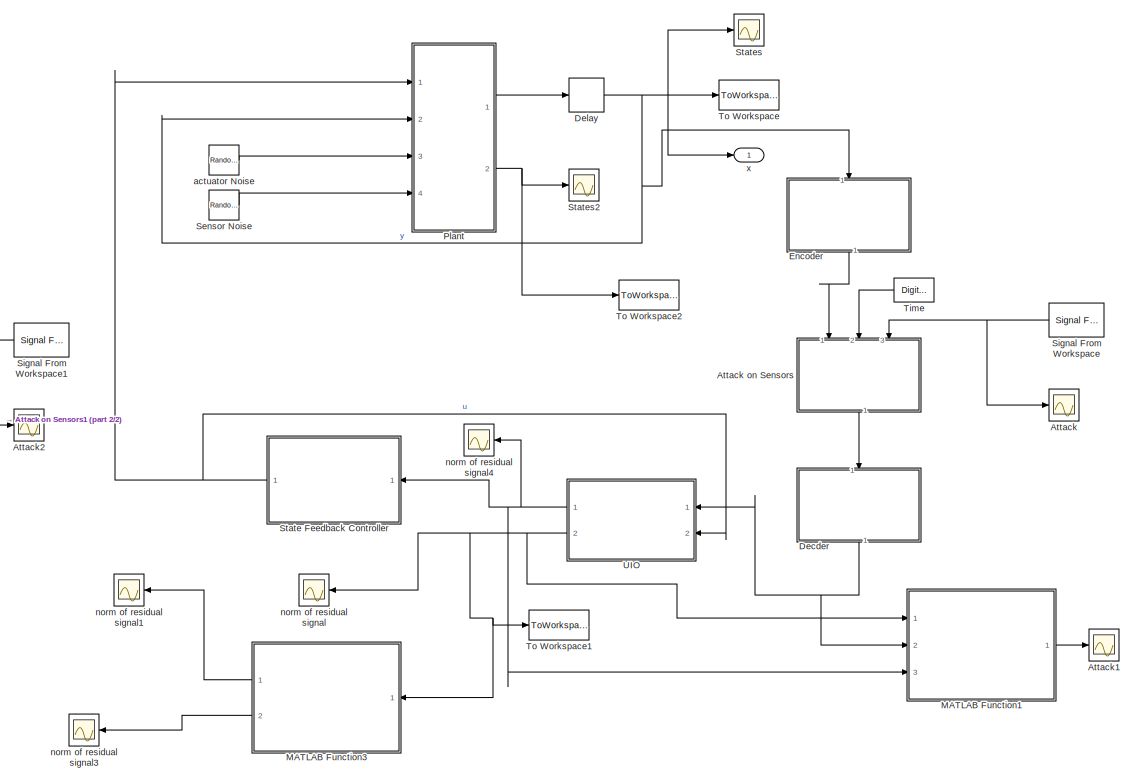
[diagram: root canvas - part 1/2, right side, full height]
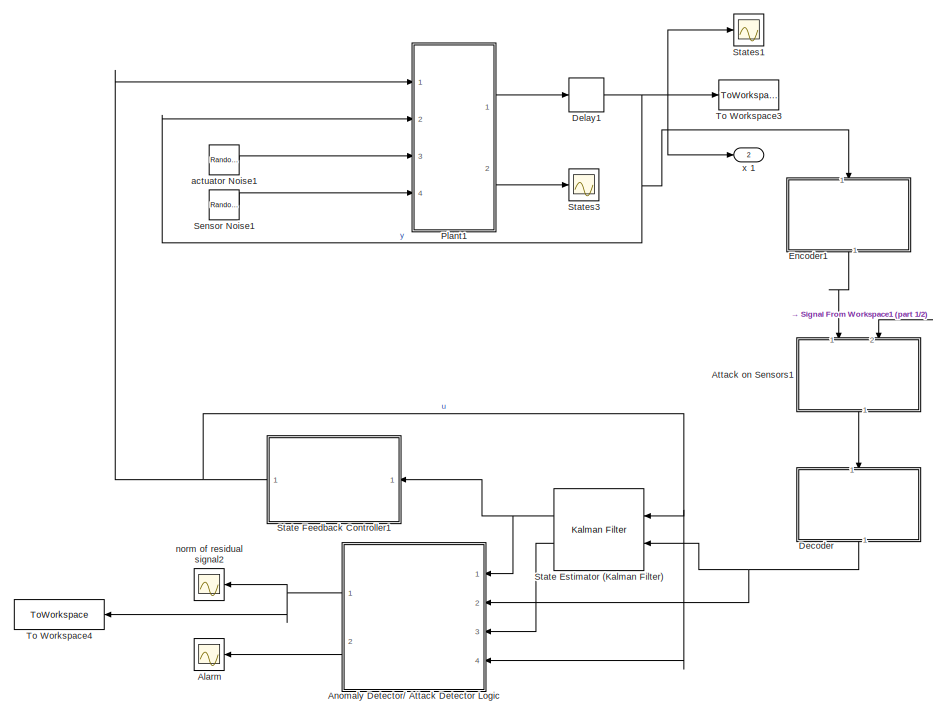
[diagram: root canvas - part 2/2, left side, full height]
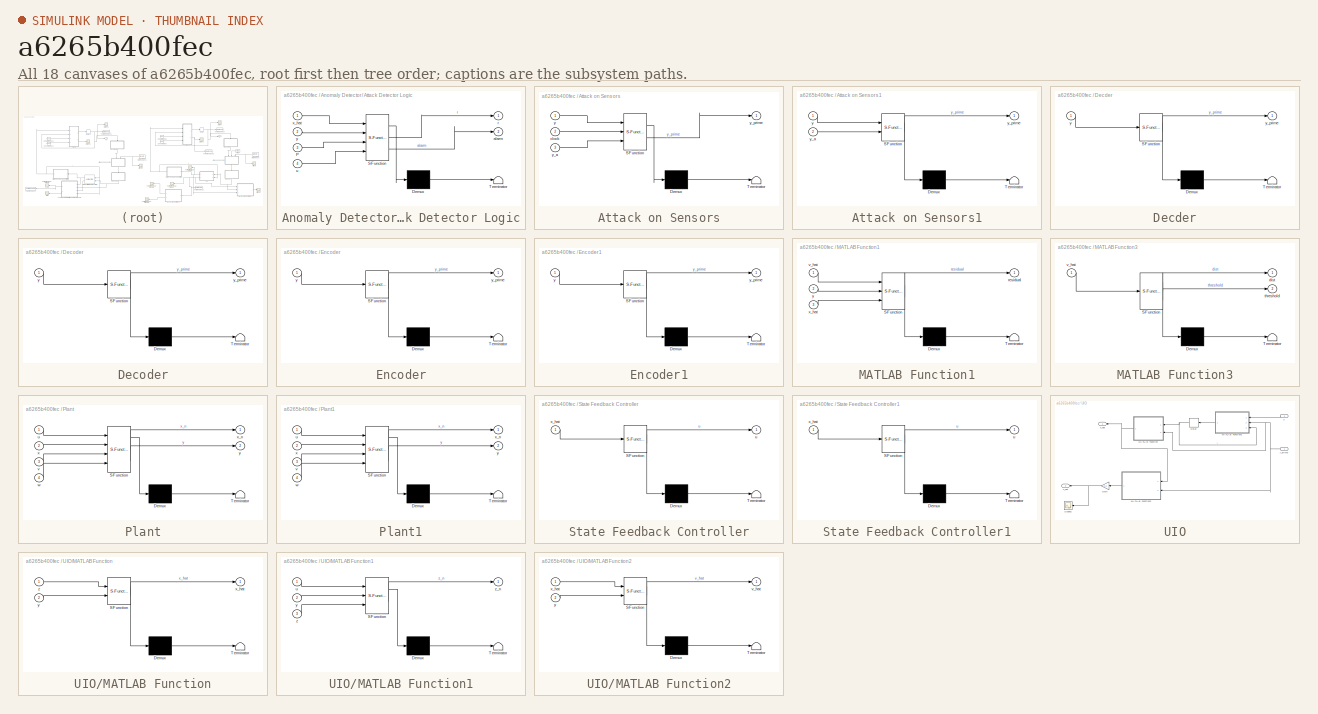
[diagram: thumbnail index - all 18 canvases of the model, root first then tree order]
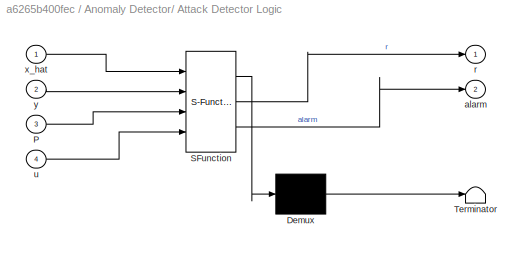
MODEL slx_a6265b400fec
KIND model
CONFIG AbsTol = auto
CONFIG EnableMultiTasking = off
CONFIG FixedStep = auto
CONFIG MaxStep = auto
CONFIG MinStep = auto
CONFIG RelTol = 1e-3
CONFIG SampleTimeConstraint = Unconstrained
CONFIG SolverName = VariableStepAuto
CONFIG StartTime = 0.0
CONFIG StopTime = 100
BLOCK [Scope] Alarm
  Floating = off
  NameLocation = top
  NumInputPorts = 1
  Ports = [1]
  ScopeSpecificationString = Simulink.scopes.TimeScopeBlockCfg('CurrentConfiguration', extmgr.ConfigurationSet(extmgr.Configuration('Core','General UI',true),extmgr.Configuration('Core','Source UI',true),extmgr.Configuration('Sources','WiredSimulink',true,'DataLoggingVariableName','ScopeData1'),extmgr.Configuration('Visuals','Time Domain',true,'SerializedDisplays',{struct('MinYLimReal','-0.125','MaxYLimReal','1.125','YLabelRe...<+1472ch>
BLOCK [SubSystem] Anomaly Detector// Attack Detector Logic
  ErrorFcn = Stateflow.Translate.translate
  NameLocation = top
  PermitHierarchicalResolution = ExplicitOnly
  Ports = [4, 2]
  RequestExecContextInheritance = off
  SFBlockType = MATLAB Function
  TreatAsAtomicUnit = on
BLOCK [Demux] Anomaly Detector// Attack Detector Logic/ Demux 
  Outputs = 1
  Ports = [1, 1]
BLOCK [S-Function] Anomaly Detector// Attack Detector Logic/ SFunction 
  EnableBusSupport = on
  FunctionName = sf_sfun
  PortCounts = [4 3]
  Ports = [4, 3]
  SFcnIsStateOwnerBlock = off
  SFunctionDeploymentMode = off
  Tag = Stateflow S-Function 11
BLOCK [Terminator] Anomaly Detector// Attack Detector Logic/ Terminator 
BLOCK [Inport] Anomaly Detector// Attack Detector Logic/P
  Port = 3
BLOCK [Outport] Anomaly Detector// Attack Detector Logic/alarm
  Port = 2
BLOCK [Outport] Anomaly Detector// Attack Detector Logic/r
BLOCK [Inport] Anomaly Detector// Attack Detector Logic/u
  Port = 4
BLOCK [Inport] Anomaly Detector// Attack Detector Logic/x_hat
BLOCK [Inport] Anomaly Detector// Attack Detector Logic/y
  Port = 2
BLOCK [Scope] Attack
  Floating = off
  NumInputPorts = 1
  Ports = [1]
  ScopeSpecificationString = Simulink.scopes.TimeScopeBlockCfg('CurrentConfiguration', extmgr.ConfigurationSet(extmgr.Configuration('Core','General UI',true),extmgr.Configuration('Core','Source UI',true),extmgr.Configuration('Sources','WiredSimulink',true,'DataLoggingVariableName','ScopeData2'),extmgr.Configuration('Visuals','Time Domain',true,'SerializedDisplays',{struct('MinYLimReal','-4.34935','MaxYLimReal','0.62615','YLab...<+1514ch>
BLOCK [SubSystem] Attack on Sensors
  ErrorFcn = Stateflow.Translate.translate
  NameLocation = left
  PermitHierarchicalResolution = ExplicitOnly
  Ports = [3, 1]
  RequestExecContextInheritance = off
  SFBlockType = MATLAB Function
  TreatAsAtomicUnit = on
BLOCK [Demux] Attack on Sensors/ Demux 
  Outputs = 1
  Ports = [1, 1]
BLOCK [S-Function] Attack on Sensors/ SFunction 
  EnableBusSupport = on
  FunctionName = sf_sfun
  PortCounts = [3 2]
  Ports = [3, 2]
  SFcnIsStateOwnerBlock = off
  SFunctionDeploymentMode = off
  Tag = Stateflow S-Function 2
BLOCK [Terminator] Attack on Sensors/ Terminator 
BLOCK [Inport] Attack on Sensors/clock
  Port = 2
BLOCK [Inport] Attack on Sensors/y
BLOCK [Inport] Attack on Sensors/y_a
  Port = 3
BLOCK [Outport] Attack on Sensors/y_prime
  VectorParamsAs1DForOutWhenUnconnected = off
BLOCK [SubSystem] Attack on Sensors1
  ErrorFcn = Stateflow.Translate.translate
  NameLocation = left
  PermitHierarchicalResolution = ExplicitOnly
  Ports = [2, 1]
  RequestExecContextInheritance = off
  SFBlockType = MATLAB Function
  TreatAsAtomicUnit = on
BLOCK [Demux] Attack on Sensors1/ Demux 
  Outputs = 1
  Ports = [1, 1]
BLOCK [S-Function] Attack on Sensors1/ SFunction 
  EnableBusSupport = on
  FunctionName = sf_sfun
  PortCounts = [2 2]
  Ports = [2, 2]
  SFcnIsStateOwnerBlock = off
  SFunctionDeploymentMode = off
  Tag = Stateflow S-Function 12
BLOCK [Terminator] Attack on Sensors1/ Terminator 
BLOCK [Inport] Attack on Sensors1/y
BLOCK [Inport] Attack on Sensors1/y_a
  Port = 2
BLOCK [Outport] Attack on Sensors1/y_prime
  VectorParamsAs1DForOutWhenUnconnected = off
BLOCK [Scope] Attack1
  Floating = off
  NumInputPorts = 1
  Ports = [1]
  ScopeSpecificationString = Simulink.scopes.TimeScopeBlockCfg('CurrentConfiguration', extmgr.ConfigurationSet(extmgr.Configuration('Core','General UI',true),extmgr.Configuration('Core','Source UI',true),extmgr.Configuration('Sources','WiredSimulink',true,'DataLoggingVariableName','ScopeData2'),extmgr.Configuration('Visuals','Time Domain',true,'SerializedDisplays',{struct('MinYLimReal','-0.02953','MaxYLimReal','0.03698','YLab...<+1504ch>
BLOCK [Scope] Attack2
  Floating = off
  NumInputPorts = 1
  Ports = [1]
  ScopeSpecificationString = Simulink.scopes.TimeScopeBlockCfg('CurrentConfiguration', extmgr.ConfigurationSet(extmgr.Configuration('Core','General UI',true),extmgr.Configuration('Core','Source UI',true),extmgr.Configuration('Sources','WiredSimulink',true,'DataLoggingVariableName','ScopeData2'),extmgr.Configuration('Visuals','Time Domain',true,'SerializedDisplays',{struct('MinYLimReal','-4.34935','MaxYLimReal','0.62615','YLab...<+1514ch>
BLOCK [SubSystem] Decder
  ErrorFcn = Stateflow.Translate.translate
  NameLocation = left
  PermitHierarchicalResolution = ExplicitOnly
  Ports = [1, 1]
  RequestExecContextInheritance = off
  SFBlockType = MATLAB Function
  TreatAsAtomicUnit = on
BLOCK [Demux] Decder/ Demux 
  Outputs = 1
  Ports = [1, 1]
BLOCK [S-Function] Decder/ SFunction 
  EnableBusSupport = on
  FunctionName = sf_sfun
  PortCounts = [1 2]
  Ports = [1, 2]
  SFcnIsStateOwnerBlock = off
  SFunctionDeploymentMode = off
  Tag = Stateflow S-Function 6
BLOCK [Terminator] Decder/ Terminator 
BLOCK [Inport] Decder/y
BLOCK [Outport] Decder/y_prime
  VectorParamsAs1DForOutWhenUnconnected = off
BLOCK [SubSystem] Decoder
  ErrorFcn = Stateflow.Translate.translate
  NameLocation = left
  PermitHierarchicalResolution = ExplicitOnly
  Ports = [1, 1]
  RequestExecContextInheritance = off
  SFBlockType = MATLAB Function
  TreatAsAtomicUnit = on
BLOCK [Demux] Decoder/ Demux 
  Outputs = 1
  Ports = [1, 1]
BLOCK [S-Function] Decoder/ SFunction 
  EnableBusSupport = on
  FunctionName = sf_sfun
  PortCounts = [1 2]
  Ports = [1, 2]
  SFcnIsStateOwnerBlock = off
  SFunctionDeploymentMode = off
  Tag = Stateflow S-Function 13
BLOCK [Terminator] Decoder/ Terminator 
BLOCK [Inport] Decoder/y
BLOCK [Outport] Decoder/y_prime
  VectorParamsAs1DForOutWhenUnconnected = off
BLOCK [Delay] Delay
  DelayLength = 1
  InitialCondition = [0;0]
  InputPortMap = u0
  Ports = [1, 1]
  SampleTime = sample_time
BLOCK [Delay] Delay1
  DelayLength = 1
  InitialCondition = [0;0]
  InputPortMap = u0
  Ports = [1, 1]
  SampleTime = sample_time
BLOCK [SubSystem] Encoder
  ErrorFcn = Stateflow.Translate.translate
  NameLocation = left
  PermitHierarchicalResolution = ExplicitOnly
  Ports = [1, 1]
  RequestExecContextInheritance = off
  SFBlockType = MATLAB Function
  TreatAsAtomicUnit = on
BLOCK [Demux] Encoder/ Demux 
  Outputs = 1
  Ports = [1, 1]
BLOCK [S-Function] Encoder/ SFunction 
  EnableBusSupport = on
  FunctionName = sf_sfun
  PortCounts = [1 2]
  Ports = [1, 2]
  SFcnIsStateOwnerBlock = off
  SFunctionDeploymentMode = off
  Tag = Stateflow S-Function 5
BLOCK [Terminator] Encoder/ Terminator 
BLOCK [Inport] Encoder/y
BLOCK [Outport] Encoder/y_prime
  VectorParamsAs1DForOutWhenUnconnected = off
BLOCK [SubSystem] Encoder1
  ErrorFcn = Stateflow.Translate.translate
  NameLocation = left
  PermitHierarchicalResolution = ExplicitOnly
  Ports = [1, 1]
  RequestExecContextInheritance = off
  SFBlockType = MATLAB Function
  TreatAsAtomicUnit = on
BLOCK [Demux] Encoder1/ Demux 
  Outputs = 1
  Ports = [1, 1]
BLOCK [S-Function] Encoder1/ SFunction 
  EnableBusSupport = on
  FunctionName = sf_sfun
  PortCounts = [1 2]
  Ports = [1, 2]
  SFcnIsStateOwnerBlock = off
  SFunctionDeploymentMode = off
  Tag = Stateflow S-Function 14
BLOCK [Terminator] Encoder1/ Terminator 
BLOCK [Inport] Encoder1/y
BLOCK [Outport] Encoder1/y_prime
  VectorParamsAs1DForOutWhenUnconnected = off
BLOCK [SubSystem] MATLAB Function1
  ErrorFcn = Stateflow.Translate.translate
  PermitHierarchicalResolution = ExplicitOnly
  Ports = [3, 1]
  RequestExecContextInheritance = off
  SFBlockType = MATLAB Function
  TreatAsAtomicUnit = on
BLOCK [Demux] MATLAB Function1/ Demux 
  Outputs = 1
  Ports = [1, 1]
BLOCK [S-Function] MATLAB Function1/ SFunction 
  EnableBusSupport = on
  FunctionName = sf_sfun
  PortCounts = [3 2]
  Ports = [3, 2]
  SFcnIsStateOwnerBlock = off
  SFunctionDeploymentMode = off
  Tag = Stateflow S-Function 10
BLOCK [Terminator] MATLAB Function1/ Terminator 
BLOCK [Outport] MATLAB Function1/residual
  VectorParamsAs1DForOutWhenUnconnected = off
BLOCK [Inport] MATLAB Function1/v_hat
BLOCK [Inport] MATLAB Function1/x_hat
  Port = 3
BLOCK [Inport] MATLAB Function1/y
  Port = 2
BLOCK [SubSystem] MATLAB Function3
  ErrorFcn = Stateflow.Translate.translate
  NameLocation = top
  PermitHierarchicalResolution = ExplicitOnly
  Ports = [1, 2]
  RequestExecContextInheritance = off
  SFBlockType = MATLAB Function
  TreatAsAtomicUnit = on
BLOCK [Demux] MATLAB Function3/ Demux 
  Outputs = 1
  Ports = [1, 1]
BLOCK [S-Function] MATLAB Function3/ SFunction 
  EnableBusSupport = on
  FunctionName = sf_sfun
  PortCounts = [1 3]
  Ports = [1, 3]
  SFcnIsStateOwnerBlock = off
  SFunctionDeploymentMode = off
  Tag = Stateflow S-Function 4
BLOCK [Terminator] MATLAB Function3/ Terminator 
BLOCK [Outport] MATLAB Function3/dist
  VectorParamsAs1DForOutWhenUnconnected = off
BLOCK [Outport] MATLAB Function3/threshold
  Port = 2
  VectorParamsAs1DForOutWhenUnconnected = off
BLOCK [Inport] MATLAB Function3/v_hat
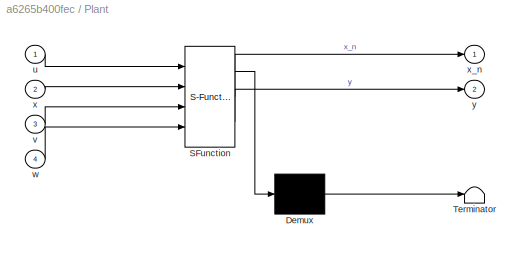
BLOCK [SubSystem] Plant
  ErrorFcn = Stateflow.Translate.translate
  PermitHierarchicalResolution = ExplicitOnly
  Ports = [4, 2]
  RequestExecContextInheritance = off
  SFBlockType = MATLAB Function
  TreatAsAtomicUnit = on
BLOCK [Demux] Plant/ Demux 
  Outputs = 1
  Ports = [1, 1]
BLOCK [S-Function] Plant/ SFunction 
  EnableBusSupport = on
  FunctionName = sf_sfun
  PortCounts = [4 3]
  Ports = [4, 3]
  SFcnIsStateOwnerBlock = off
  SFunctionDeploymentMode = off
  Tag = Stateflow S-Function 1
BLOCK [Terminator] Plant/ Terminator 
BLOCK [Inport] Plant/u
BLOCK [Inport] Plant/v
  Port = 3
BLOCK [Inport] Plant/w
  Port = 4
BLOCK [Inport] Plant/x
  Port = 2
BLOCK [Outport] Plant/x_n
  VectorParamsAs1DForOutWhenUnconnected = off
BLOCK [Outport] Plant/y
  Port = 2
  VectorParamsAs1DForOutWhenUnconnected = off
BLOCK [SubSystem] Plant1
  ErrorFcn = Stateflow.Translate.translate
  PermitHierarchicalResolution = ExplicitOnly
  Ports = [4, 2]
  RequestExecContextInheritance = off
  SFBlockType = MATLAB Function
  TreatAsAtomicUnit = on
BLOCK [Demux] Plant1/ Demux 
  Outputs = 1
  Ports = [1, 1]
BLOCK [S-Function] Plant1/ SFunction 
  EnableBusSupport = on
  FunctionName = sf_sfun
  PortCounts = [4 3]
  Ports = [4, 3]
  SFcnIsStateOwnerBlock = off
  SFunctionDeploymentMode = off
  Tag = Stateflow S-Function 15
BLOCK [Terminator] Plant1/ Terminator 
BLOCK [Inport] Plant1/u
BLOCK [Inport] Plant1/v
  Port = 3
BLOCK [Inport] Plant1/w
  Port = 4
BLOCK [Inport] Plant1/x
  Port = 2
BLOCK [Outport] Plant1/x_n
  VectorParamsAs1DForOutWhenUnconnected = off
BLOCK [Outport] Plant1/y
  Port = 2
  VectorParamsAs1DForOutWhenUnconnected = off
BLOCK [RandomNumber] Sensor Noise
  Mean = [0 0]
  SampleTime = sample_time
  Seed = [randi(100) randi(100)]
  Variance = [0.0001 0.0001]
BLOCK [RandomNumber] Sensor Noise1
  Mean = [0 0]
  SampleTime = sample_time
  Seed = [randi(100) randi(100)]
  Variance = [0.01 0.01]
BLOCK [Reference] Signal From Workspace  REF=dspsrcs4/Signal From
Workspace
  NameLocation = top
  Ports = [0, 1]
  SourceBlock = dspsrcs4/Signal From\nWorkspace
  SourceProductBaseCode = DS
  SourceType = Signal From Workspace
BLOCK [Reference] Signal From Workspace1  REF=dspsrcs4/Signal From
Workspace
  NameLocation = top
  Ports = [0, 1]
  SourceBlock = dspsrcs4/Signal From\nWorkspace
  SourceProductBaseCode = DS
  SourceType = Signal From Workspace
BLOCK [Reference] State Estimator (Kalman Filter)  REF=ctrlSharedLib/Kalman Filter
  NameLocation = top
  Ports = [2, 2]
  SourceBlock = ctrlSharedLib/Kalman Filter
  SourceProductBaseCode = CT,ID
  SourceType = ctrlKalmanFilter
BLOCK [SubSystem] State Feedback Controller
  ErrorFcn = Stateflow.Translate.translate
  NameLocation = top
  PermitHierarchicalResolution = ExplicitOnly
  Ports = [1, 1]
  RequestExecContextInheritance = off
  SFBlockType = MATLAB Function
  TreatAsAtomicUnit = on
BLOCK [Demux] State Feedback Controller/ Demux 
  Outputs = 1
  Ports = [1, 1]
BLOCK [S-Function] State Feedback Controller/ SFunction 
  EnableBusSupport = on
  FunctionName = sf_sfun
  PortCounts = [1 2]
  Ports = [1, 2]
  SFcnIsStateOwnerBlock = off
  SFunctionDeploymentMode = off
  Tag = Stateflow S-Function 3
BLOCK [Terminator] State Feedback Controller/ Terminator 
BLOCK [Outport] State Feedback Controller/u
  VectorParamsAs1DForOutWhenUnconnected = off
BLOCK [Inport] State Feedback Controller/x_hat
BLOCK [SubSystem] State Feedback Controller1
  ErrorFcn = Stateflow.Translate.translate
  NameLocation = top
  PermitHierarchicalResolution = ExplicitOnly
  Ports = [1, 1]
  RequestExecContextInheritance = off
  SFBlockType = MATLAB Function
  TreatAsAtomicUnit = on
BLOCK [Demux] State Feedback Controller1/ Demux 
  Outputs = 1
  Ports = [1, 1]
BLOCK [S-Function] State Feedback Controller1/ SFunction 
  EnableBusSupport = on
  FunctionName = sf_sfun
  PortCounts = [1 2]
  Ports = [1, 2]
  SFcnIsStateOwnerBlock = off
  SFunctionDeploymentMode = off
  Tag = Stateflow S-Function 16
BLOCK [Terminator] State Feedback Controller1/ Terminator 
BLOCK [Outport] State Feedback Controller1/u
  VectorParamsAs1DForOutWhenUnconnected = off
BLOCK [Inport] State Feedback Controller1/x_hat
BLOCK [Scope] States
  Floating = off
  NumInputPorts = 1
  Ports = [1]
  ScopeSpecificationString = Simulink.scopes.TimeScopeBlockCfg('CurrentConfiguration', extmgr.ConfigurationSet(extmgr.Configuration('Core','General UI',true),extmgr.Configuration('Core','Source UI',true),extmgr.Configuration('Sources','WiredSimulink',true,'DataLoggingVariableName','ScopeData3'),extmgr.Configuration('Visuals','Time Domain',true,'SerializedDisplays',{struct('MinYLimReal','-0.24331','MaxYLimReal','0.2096','YLabe...<+1472ch>
BLOCK [Scope] States1
  Floating = off
  NumInputPorts = 1
  Ports = [1]
  ScopeSpecificationString = Simulink.scopes.TimeScopeBlockCfg('CurrentConfiguration', extmgr.ConfigurationSet(extmgr.Configuration('Core','General UI',true),extmgr.Configuration('Core','Source UI',true),extmgr.Configuration('Sources','WiredSimulink',true,'DataLoggingVariableName','ScopeData3'),extmgr.Configuration('Visuals','Time Domain',true,'SerializedDisplays',{struct('MinYLimReal','-150.00472','MaxYLimReal','1348.36067',...<+1490ch>
BLOCK [Scope] States2
  Floating = off
  NumInputPorts = 1
  Ports = [1]
  ScopeSpecificationString = Simulink.scopes.TimeScopeBlockCfg('CurrentConfiguration', extmgr.ConfigurationSet(extmgr.Configuration('Core','General UI',true),extmgr.Configuration('Core','Source UI',true),extmgr.Configuration('Sources','WiredSimulink',true,'DataLoggingVariableName','ScopeData4'),extmgr.Configuration('Visuals','Time Domain',true,'SerializedDisplays',{struct('MinYLimReal','-0.15345','MaxYLimReal','0.12954','YLab...<+1484ch>
BLOCK [Scope] States3
  Floating = off
  NumInputPorts = 1
  Ports = [1]
  ScopeSpecificationString = Simulink.scopes.TimeScopeBlockCfg('CurrentConfiguration', extmgr.ConfigurationSet(extmgr.Configuration('Core','General UI',true),extmgr.Configuration('Core','Source UI',true),extmgr.Configuration('Sources','WiredSimulink',true,'DataLoggingVariableName','ScopeData4'),extmgr.Configuration('Visuals','Time Domain',true,'SerializedDisplays',{struct('MinYLimReal','-150.21214','MaxYLimReal','1348.65488',...<+1504ch>
BLOCK [DigitalClock] Time
  SampleTime = sample_time
BLOCK [ToWorkspace] To Workspace
  FixptAsFi = on
  MaxDataPoints = inf
  Ports = [1]
  SampleTime = sample_time
  SaveFormat = Timeseries
  VariableName = x_k1
BLOCK [ToWorkspace] To Workspace1
  FixptAsFi = on
  MaxDataPoints = inf
  Ports = [1]
  SampleTime = sample_time
  SaveFormat = Timeseries
  VariableName = v_hat
BLOCK [ToWorkspace] To Workspace2
  FixptAsFi = on
  MaxDataPoints = inf
  Ports = [1]
  SampleTime = sample_time
  SaveFormat = Timeseries
  VariableName = sensor_measurement
BLOCK [ToWorkspace] To Workspace3
  FixptAsFi = on
  MaxDataPoints = inf
  Ports = [1]
  SampleTime = sample_time
  SaveFormat = Timeseries
  VariableName = x_k
BLOCK [ToWorkspace] To Workspace4
  FixptAsFi = on
  MaxDataPoints = inf
  NameLocation = top
  Ports = [1]
  SampleTime = sample_time
  SaveFormat = Timeseries
  VariableName = residual_1
BLOCK [SubSystem] UIO
  Ports = [2, 2]
  RequestExecContextInheritance = off
BLOCK [Delay] UIO/Delay
  DelayLength = 1
  InitialCondition = zeros(2,1)
  InputPortMap = u0
  NameLocation = top
  Ports = [1, 1]
BLOCK [Gain] UIO/Gain
  Gain = 0.5
  NameLocation = top
BLOCK [SubSystem] UIO/MATLAB Function
  ErrorFcn = Stateflow.Translate.translate
  NameLocation = top
  PermitHierarchicalResolution = ExplicitOnly
  Ports = [2, 1]
  RequestExecContextInheritance = off
  SFBlockType = MATLAB Function
  TreatAsAtomicUnit = on
BLOCK [Demux] UIO/MATLAB Function/ Demux 
  Outputs = 1
  Ports = [1, 1]
BLOCK [S-Function] UIO/MATLAB Function/ SFunction 
  EnableBusSupport = on
  FunctionName = sf_sfun
  PortCounts = [2 2]
  Ports = [2, 2]
  SFcnIsStateOwnerBlock = off
  SFunctionDeploymentMode = off
  Tag = Stateflow S-Function 7
BLOCK [Terminator] UIO/MATLAB Function/ Terminator 
BLOCK [Outport] UIO/MATLAB Function/x_hat
  VectorParamsAs1DForOutWhenUnconnected = off
BLOCK [Inport] UIO/MATLAB Function/y
  Port = 2
BLOCK [Inport] UIO/MATLAB Function/z
BLOCK [SubSystem] UIO/MATLAB Function1
  ErrorFcn = Stateflow.Translate.translate
  NameLocation = top
  PermitHierarchicalResolution = ExplicitOnly
  Ports = [3, 1]
  RequestExecContextInheritance = off
  SFBlockType = MATLAB Function
  TreatAsAtomicUnit = on
BLOCK [Demux] UIO/MATLAB Function1/ Demux 
  Outputs = 1
  Ports = [1, 1]
BLOCK [S-Function] UIO/MATLAB Function1/ SFunction 
  EnableBusSupport = on
  FunctionName = sf_sfun
  PortCounts = [3 2]
  Ports = [3, 2]
  SFcnIsStateOwnerBlock = off
  SFunctionDeploymentMode = off
  Tag = Stateflow S-Function 8
BLOCK [Terminator] UIO/MATLAB Function1/ Terminator 
BLOCK [Inport] UIO/MATLAB Function1/u
BLOCK [Inport] UIO/MATLAB Function1/y
  Port = 2
BLOCK [Inport] UIO/MATLAB Function1/z
  Port = 3
BLOCK [Outport] UIO/MATLAB Function1/z_n
  VectorParamsAs1DForOutWhenUnconnected = off
BLOCK [SubSystem] UIO/MATLAB Function2
  ErrorFcn = Stateflow.Translate.translate
  NameLocation = top
  PermitHierarchicalResolution = ExplicitOnly
  Ports = [2, 1]
  RequestExecContextInheritance = off
  SFBlockType = MATLAB Function
  TreatAsAtomicUnit = on
BLOCK [Demux] UIO/MATLAB Function2/ Demux 
  Outputs = 1
  Ports = [1, 1]
BLOCK [S-Function] UIO/MATLAB Function2/ SFunction 
  EnableBusSupport = on
  FunctionName = sf_sfun
  PortCounts = [2 2]
  Ports = [2, 2]
  SFcnIsStateOwnerBlock = off
  SFunctionDeploymentMode = off
  Tag = Stateflow S-Function 9
BLOCK [Terminator] UIO/MATLAB Function2/ Terminator 
BLOCK [Outport] UIO/MATLAB Function2/v_hat
  VectorParamsAs1DForOutWhenUnconnected = off
BLOCK [Inport] UIO/MATLAB Function2/x_hat
BLOCK [Inport] UIO/MATLAB Function2/y
  Port = 2
BLOCK [Scope] UIO/Scope2
  Floating = off
  NameLocation = top
  NumInputPorts = 1
  Ports = [1]
  ScopeSpecificationString = Simulink.scopes.TimeScopeBlockCfg('CurrentConfiguration', extmgr.ConfigurationSet(extmgr.Configuration('Core','General UI',true),extmgr.Configuration('Core','Source UI',true),extmgr.Configuration('Sources','WiredSimulink',true,'DataLoggingVariableName','ScopeData7'),extmgr.Configuration('Visuals','Time Domain',true,'SerializedDisplays',{struct('MinYLimReal','-1.65798','MaxYLimReal','3.56682','YLab...<+1402ch>
BLOCK [Inport] UIO/u
  Port = 2
BLOCK [Outport] UIO/v_hat
  Port = 2
  VectorParamsAs1DForOutWhenUnconnected = off
BLOCK [Outport] UIO/x_hat
  VectorParamsAs1DForOutWhenUnconnected = off
BLOCK [Inport] UIO/y_prime
  NameLocation = top
BLOCK [RandomNumber] actuator Noise
  Mean = [0 0]
  SampleTime = sample_time
  Seed = [randi(100) randi(100)]
  Variance = [0.0001 0.0001]
BLOCK [RandomNumber] actuator Noise1
  Mean = [0 0]
  SampleTime = sample_time
  Seed = [randi(100) randi(100)]
  Variance = [0.0001 0.0001]
BLOCK [Scope] norm of residual signal
  Floating = off
  NameLocation = top
  NumInputPorts = 1
  Ports = [1]
  ScopeSpecificationString = Simulink.scopes.TimeScopeBlockCfg('CurrentConfiguration', extmgr.ConfigurationSet(extmgr.Configuration('Core','General UI',true),extmgr.Configuration('Core','Source UI',true),extmgr.Configuration('Sources','WiredSimulink',true),extmgr.Configuration('Visuals','Time Domain',true,'SerializedDisplays',{struct('MinYLimReal','-0.0324','MaxYLimReal','0.03183','YLabelReal','','MinYLimMag','0.00000','MaxYL...<+1398ch>
BLOCK [Scope] norm of residual signal1
  Floating = off
  NameLocation = top
  NumInputPorts = 1
  Ports = [1]
  ScopeSpecificationString = Simulink.scopes.TimeScopeBlockCfg('CurrentConfiguration', extmgr.ConfigurationSet(extmgr.Configuration('Core','General UI',true),extmgr.Configuration('Core','Source UI',true),extmgr.Configuration('Sources','WiredSimulink',true,'DataLoggingVariableName','ScopeData1'),extmgr.Configuration('Visuals','Time Domain',true,'SerializedDisplays',{struct('MinYLimReal','-0.05417','MaxYLimReal','1.58324','YLab...<+1459ch>
BLOCK [Scope] norm of residual signal2
  Floating = off
  NameLocation = top
  NumInputPorts = 1
  Ports = [1]
  ScopeSpecificationString = Simulink.scopes.TimeScopeBlockCfg('CurrentConfiguration', extmgr.ConfigurationSet(extmgr.Configuration('Core','General UI',true),extmgr.Configuration('Core','Source UI',true),extmgr.Configuration('Sources','WiredSimulink',true,'DataLoggingVariableName','ScopeData5'),extmgr.Configuration('Visuals','Time Domain',true,'SerializedDisplays',{struct('MinYLimReal','-2.96613','MaxYLimReal','27.12577','YLa...<+1481ch>
BLOCK [Scope] norm of residual signal3
  Floating = off
  NameLocation = top
  NumInputPorts = 1
  Ports = [1]
  ScopeSpecificationString = Simulink.scopes.TimeScopeBlockCfg('CurrentConfiguration', extmgr.ConfigurationSet(extmgr.Configuration('Core','General UI',true),extmgr.Configuration('Core','Source UI',true),extmgr.Configuration('Sources','WiredSimulink',true,'DataLoggingVariableName','ScopeData3'),extmgr.Configuration('Visuals','Time Domain',true,'SerializedDisplays',{struct('MinYLimReal','0.8','MaxYLimReal','1.00000','YLabelRea...<+1444ch>
BLOCK [Scope] norm of residual signal4
  Floating = off
  NameLocation = top
  NumInputPorts = 1
  Ports = [1]
  ScopeSpecificationString = Simulink.scopes.TimeScopeBlockCfg('CurrentConfiguration', extmgr.ConfigurationSet(extmgr.Configuration('Core','General UI',true),extmgr.Configuration('Core','Source UI',true),extmgr.Configuration('Sources','WiredSimulink',true,'DataLoggingVariableName','ScopeData1'),extmgr.Configuration('Visuals','Time Domain',true,'SerializedDisplays',{struct('MinYLimReal','-0.0324','MaxYLimReal','0.03183','YLabe...<+1437ch>
BLOCK [Outport] x 
  VectorParamsAs1DForOutWhenUnconnected = off
BLOCK [Outport] x 1
  Port = 2
  VectorParamsAs1DForOutWhenUnconnected = off
NET Anomaly Detector// Attack Detector Logic:1 -> To Workspace4:1, norm of residual signal2:1
LINE Anomaly Detector// Attack Detector Logic:2 -> Alarm:1
LINE Attack on Sensors1:1 -> Decoder:1
LINE Attack on Sensors:1 -> Decder:1
NET Decder:1 -> MATLAB Function1:2, UIO:1
NET Decoder:1 -> Anomaly Detector// Attack Detector Logic:2, State Estimator (Kalman Filter):2
NET Delay1:1 -> Encoder1:1, Plant1:2, States1:1, To Workspace3:1, x 1:1
NET Delay:1 -> Encoder:1, Plant:2, States:1, To Workspace:1, x :1
LINE Encoder1:1 -> Attack on Sensors1:1
LINE Encoder:1 -> Attack on Sensors:1
LINE MATLAB Function1:1 -> Attack1:1
LINE MATLAB Function3:1 -> norm of residual signal1:1
LINE MATLAB Function3:2 -> norm of residual signal3:1
LINE Plant1:1 -> Delay1:1
LINE Plant1:2 -> States3:1
LINE Plant:1 -> Delay:1
NET Plant:2 -> States2:1, To Workspace2:1
LINE Sensor Noise1:1 -> Plant1:4
LINE Sensor Noise:1 -> Plant:4
NET Signal From Workspace1:1 -> Attack on Sensors1:2, Attack2:1
NET Signal From Workspace:1 -> Attack on Sensors:3, Attack:1
NET State Estimator (Kalman Filter):1 -> Anomaly Detector// Attack Detector Logic:1, State Feedback Controller1:1
LINE State Estimator (Kalman Filter):2 -> Anomaly Detector// Attack Detector Logic:3
NET State Feedback Controller1:1 -> Anomaly Detector// Attack Detector Logic:4, Plant1:1, State Estimator (Kalman Filter):1
NET State Feedback Controller:1 -> Plant:1, UIO:2
LINE Time:1 -> Attack on Sensors:2
NET UIO/Delay:1 -> UIO/MATLAB Function1:3, UIO/MATLAB Function:1
NET UIO/Gain:1 -> UIO/Scope2:1, UIO/v_hat:1
LINE UIO/MATLAB Function1:1 -> UIO/Delay:1
LINE UIO/MATLAB Function2:1 -> UIO/Gain:1
NET UIO/MATLAB Function:1 -> UIO/MATLAB Function2:1, UIO/x_hat:1
LINE UIO/u:1 -> UIO/MATLAB Function1:1
NET UIO/y_prime:1 -> UIO/MATLAB Function1:2, UIO/MATLAB Function2:2, UIO/MATLAB Function:2
NET UIO:1 -> MATLAB Function1:3, State Feedback Controller:1, norm of residual signal4:1
NET UIO:2 -> MATLAB Function1:1, MATLAB Function3:1, To Workspace1:1, norm of residual signal:1
LINE actuator Noise1:1 -> Plant1:3
LINE actuator Noise:1 -> Plant:3
note: NET lines group one-source signal fan-out (src -> all destinations, sorted); 1:1 wires keep LINE
CHART Anomaly Detector// Attack Detector Logic states=1 transitions=1
  STATE_LABEL 'eML_blk_kernel()'
  STATE_LABEL 'SCRIPT:\nfunction [r, alarm] = Detector(x_hat,y, P, u)\n% this function should contain the detection strategy\n\n% for the chi square detector "P" should be the name of detection signal and\n% "tau" the name of threshold\nA = [0.8 0; 0.5 1];\nB = [1;0.5];\nC = [2 0.5;0 1];\nthreshold = chi2inv(0.99,2);\nsigma = ((C)*(P)*(C\')) + 0.01;\nr = 0.8*norm(y\' - C*(A*x_hat + B*u),2);\nz = (r\') * (inv(sigma)) * r;\nif z<...<+106ch>'
CHART Attack on Sensors1 states=1 transitions=1
  STATE_LABEL 'eML_blk_kernel()'
  STATE_LABEL 'SCRIPT:\nfunction y_prime = fcn(y, y_a)\n% this function should contain the attacker action on the sensor\n% measurements\nsigma1 = [2 -0.5;-0.5 1];\nsigma2 = [1 -1;2 0];\n\ny_prime = y_a;\n% y_prime = y;\n\nend\n\n   \n\n'
CHART Decoder states=1 transitions=1
  STATE_LABEL 'eML_blk_kernel()'
  STATE_LABEL 'SCRIPT:\nfunction y_prime = fcn(y)\n% this function should contain the attacker action on the sensor\n% measurements\nsigma1 = [2 -0.5;-0.5 1];\nsigma2 = [1 -1;2 0];\n% y_prime = y*inv(sigma1);\ny_prime = y;\nend\n\n   \n\n'
CHART Encoder1 states=1 transitions=1
  STATE_LABEL 'eML_blk_kernel()'
  STATE_LABEL "SCRIPT:\nfunction y_prime = fcn(y)\n% this function should contain the attacker action on the sensor\n% measurements\nsigma1 = [2 -0.5;-0.5 1];\nsigma2 = [1 -1;2 0];\n% y_prime = y'*sigma1;\ny_prime = y;\nend\n\n   \n\n"
CHART Plant1 states=1 transitions=1
  STATE_LABEL 'eML_blk_kernel()'
  STATE_LABEL 'SCRIPT:\nfunction [x_n, y] = fcn(u, x, v, w)\n\n%A=[1.0000    0.0001   -0.0010;0.5747    1.0000   -0.0003;0.0162    0.0000    1.0000];\n%B = [0.1   -0.2; -0.0536    0.0332;0.1955   -0.5294];\n\nA = [0.8 0; 0.5 1];\nB = [1;0.5];\nC = [2 0.5;0 1];\nD = 0;\n\nx_n = A*x + B*u + v;\ny = C*x + D*u + w;\n'
CHART State Feedback Controller1 states=1 transitions=1
  STATE_LABEL 'eML_blk_kernel()'
  STATE_LABEL 'SCRIPT:\nfunction u  = Controller(x_hat)\n%two tanks model \n\n\n\nK = [-1  -4];\n\nu = K*x_hat;\n\n\n\n'
CHART Plant states=1 transitions=1
  STATE_LABEL 'eML_blk_kernel()'
  STATE_LABEL 'SCRIPT:\nfunction [x_n, y] = fcn(u, x, v, w)\n\n%A=[1.0000    0.0001   -0.0010;0.5747    1.0000   -0.0003;0.0162    0.0000    1.0000];\n%B = [0.1   -0.2; -0.0536    0.0332;0.1955   -0.5294];\n\nA = [0.8 0; 0.5 1];\nB = [1;0.5];\nC = [2 0.5;0 1];\nD = 0;\n\nx_n = A*x + B*u + v;\ny = C*x + D*u + w;\n'
CHART Attack on Sensors states=1 transitions=1
  STATE_LABEL 'eML_blk_kernel()'
  STATE_LABEL 'SCRIPT:\nfunction y_prime = fcn(y, clock, y_a)\n% this function should contain the attacker action on the sensor\n% measurements\nsigma1 = [2 -0.5;-0.5 1];\nsigma2 = [1 -1;2 0];\n\n% y_prime = y_a;\ny_prime = y;\n\nend\n\n   \n\n'
CHART State Feedback Controller states=1 transitions=1
  STATE_LABEL 'eML_blk_kernel()'
  STATE_LABEL 'SCRIPT:\nfunction u  = Controller(x_hat)\n%two tanks model \n\n\n\nK = [0.1 -0.1];\n\nu = K*x_hat;\n\n\n\n'
CHART MATLAB Function3 states=1 transitions=1
  STATE_LABEL 'eML_blk_kernel()'
  STATE_LABEL "SCRIPT:\nfunction [dist,threshold] = Anomaly_Detector(v_hat)\n\n\nsigma = 0.0136;\nmu = 0;\n% a = 0.0150;\n% b = sqrt(2*pi);\n% c = 1/(a.*b);\nc = sqrt(sigma) * sqrt(2*pi)\n% dist = (1./c) *(exp(-0.5*(1/sigma)*(v_hat - mu)^2))*1/29.5893;\ndist = abs(log2(1/(2*pi*sigma)*exp(-(v_hat-mu).^2/(2*sigma^2)))/2.5);\n\n\n% pd = makedist('Normal','mu',mu,'sigma',sigma);\n% dist = pdf(pd,v_hat)\nthreshold = 0.9;\n\nif dist<th...<+103ch>"
CHART Encoder states=1 transitions=1
  STATE_LABEL 'eML_blk_kernel()'
  STATE_LABEL "SCRIPT:\nfunction y_prime = fcn(y)\n% this function should contain the attacker action on the sensor\n% measurements\n\ntrans = [-0.547381274157748,0.836883349518582;0.836883349518582,0.547381274157748];\n\ny_prime = y'*trans;\n% y_prime = y;\nend\n\n   \n\n"
CHART Decder states=1 transitions=1
  STATE_LABEL 'eML_blk_kernel()'
  STATE_LABEL "SCRIPT:\nfunction y_prime = fcn(y)\n% this function should contain the attacker action on the sensor\n% measurements\ntrans = [-0.547381274157748,0.836883349518582;0.836883349518582,0.547381274157748];\n\ny_prime = y*trans';\n% y_prime = y;\nend\n\n   \n\n"
CHART UIO/MATLAB Function states=1 transitions=1
  STATE_LABEL 'eML_blk_kernel()'
  STATE_LABEL "SCRIPT:\nfunction x_hat = estimator(z,y)\n\nM = [0.666666666666667,-0.666666666666667;\n    0.666666666666667,-0.666666666666667];\n\nx_hat = z + M*y';\n"
CHART UIO/MATLAB Function1 states=1 transitions=1
  STATE_LABEL 'eML_blk_kernel()'
  STATE_LABEL "SCRIPT:\nfunction z_n = UIO(u,y,z)\n\nA = [0.8 0; 0.5 1];\nB = [1;0.5];\nC = [2 0.5;0 1];\nD = 0;\n\nM = [0.666666666666667,-0.666666666666667;\n    0.666666666666667,-0.666666666666667];\n\n\n\n\nL6 = [-0.0515    0.3474;\n   -0.2058    1.3897];\n\nz_n = (eye(2)-M*C)*(A*z + A*M*y'+B*u) + L6*(y' - C*z - C*M*y');\n\nx_hat = z + M*y';\n\n\n\n"
CHART UIO/MATLAB Function2 states=1 transitions=1
  STATE_LABEL 'eML_blk_kernel()'
  STATE_LABEL "SCRIPT:\nfunction v_hat = unknown_estimator(x_hat,y)\n\nA = [0.8 0; 0.5 1];\nB = [1;0.5];\nC = [2 0.5;0 1];\n% D = 0;\n\nE = [1;1];\nD = [1;1];\n\nv_hat = pinv(D)*y' - pinv(D)*C*x_hat;\n"
CHART MATLAB Function1 states=1 transitions=1
  STATE_LABEL 'eML_blk_kernel()'
  STATE_LABEL "SCRIPT:\nfunction residual = Anomaly_Detector(v_hat,y,x_hat)\n\n\nA = [0.8 0; 0.5 1];\nB = [1;0.5];\nC = [2 0.5;0 1];\n\nresidual = y' - C*x_hat - v_hat\n\nend\n"
CHART  states=0 transitions=0
CHART  states=0 transitions=0
CHART  states=0 transitions=0
CHART  states=0 transitions=0
CHART  states=0 transitions=0
CHART  states=0 transitions=0
CHART  states=0 transitions=0
CHART  states=0 transitions=0
CHART  states=0 transitions=0
CHART  states=0 transitions=0
CHART  states=0 transitions=0
CHART  states=0 transitions=0
CHART  states=0 transitions=0
CHART  states=0 transitions=0
CHART  states=0 transitions=0
CHART  states=0 transitions=0
